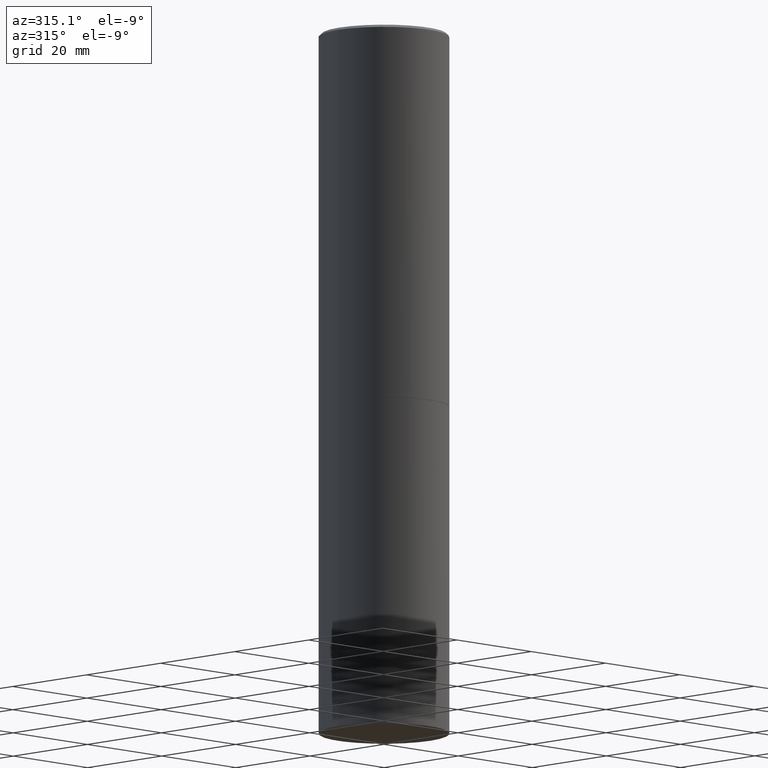
[diagram: clean part render]
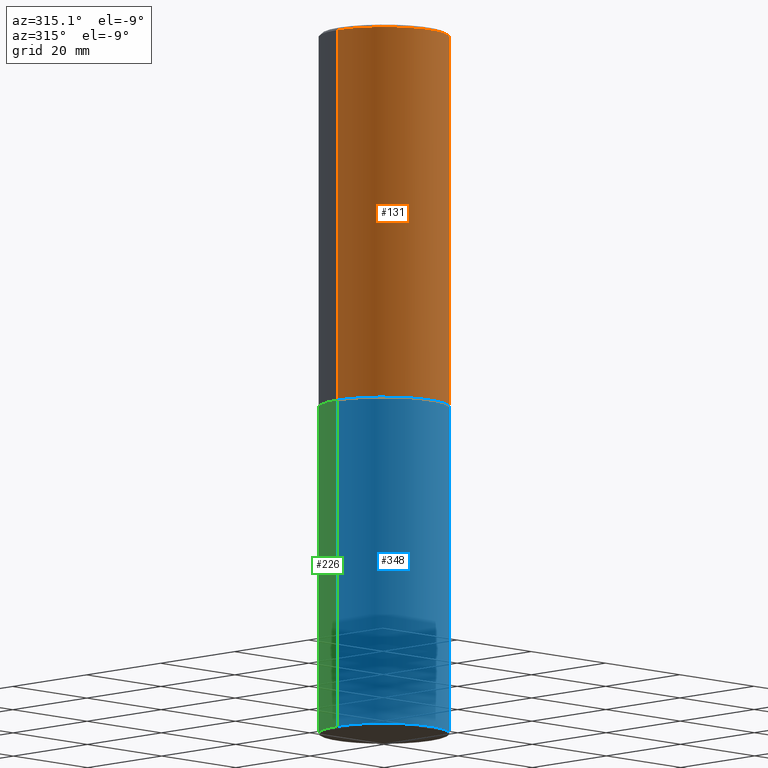
[diagram: same view with three faces highlighted in distinct colors, each labeled with its STEP entity id]
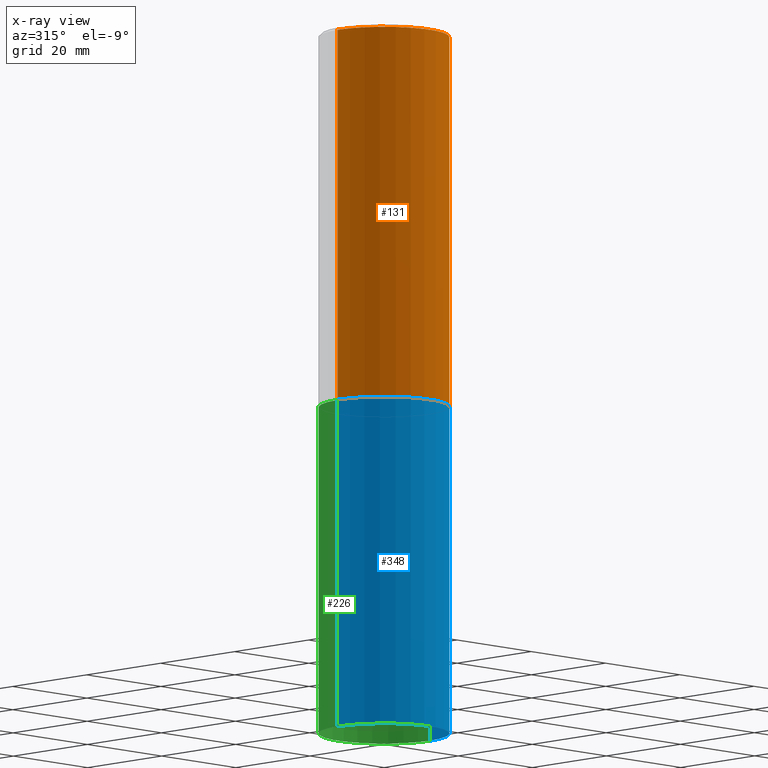
[diagram: x-ray of the same camera — body ghosted, the three highlighted faces saturated]
A machine part, auxiliary view with three faces highlighted in distinct colors.
The next image is the same camera in x-ray (body ghosted, the three faces saturated) — at least one of them is partly hidden behind the body in this view.
Their STEP definitions:

[orange] entity #131 — the highlighted cylindrical surface (partial cylindrical patch) has radius 12.5006 mm, axis along (-0, 0, 1).
#25 = ORIENTED_EDGE ( 'NONE', *, *, #360, .F. ) ;
#39 = ORIENTED_EDGE ( 'NONE', *, *, #61, .F. ) ;
#52 = EDGE_CURVE ( 'NONE', #236, #253, #229, .T. ) ;
#54 = CIRCLE ( 'NONE', #200, 0.4921499999999999764 ) ;
#61 = EDGE_CURVE ( 'NONE', #324, #253, #95, .T. ) ;
#68 = DIRECTION ( 'NONE',  ( -2.445468806185136877E-29, 3.491481338843145188E-15, 1.000000000000000000 ) ) ;
#71 = VERTEX_POINT ( 'NONE', #203 ) ;
#78 = DIRECTION ( 'NONE',  ( -2.445468806185136877E-29, 3.491481338843145188E-15, 1.000000000000000000 ) ) ;
#93 = DIRECTION ( 'NONE',  ( 1.000000000000000000, -6.982962677686265922E-15, 0.000000000000000000 ) ) ;
#95 = CIRCLE ( 'NONE', #268, 0.4921499999999996988 ) ;
#119 = EDGE_CURVE ( 'NONE', #71, #236, #54, .T. ) ;
#122 = CYLINDRICAL_SURFACE ( 'NONE', #234, 0.4921499999999998098 ) ;
#123 = FACE_OUTER_BOUND ( 'NONE', #276, .T. ) ;
#131 = ADVANCED_FACE ( 'NONE', ( #123 ), #122, .T. ) ;
#147 = DIRECTION ( 'NONE',  ( -2.445468806185136597E-29, 3.491481338843145583E-15, 1.000000000000000000 ) ) ;
#153 = CARTESIAN_POINT ( 'NONE',  ( 6.929724956086824062E-29, -9.893810669879824545E-15, -2.833700000000000774 ) ) ;
#163 = CARTESIAN_POINT ( 'NONE',  ( -0.4921499999999996988, 3.366835455046430506E-15, -0.02000000000000009409 ) ) ;
#200 = AXIS2_PLACEMENT_3D ( 'NONE', #153, #269, #272 ) ;
#201 = CARTESIAN_POINT ( 'NONE',  ( 0.4921499999999998098, -3.436665081823294593E-15, 2.399810400207968762E-29 ) ) ;
#203 = CARTESIAN_POINT ( 'NONE',  ( -0.4921499999999999764, -1.484884074285010433E-15, -2.833700000000000774 ) ) ;
#212 = CARTESIAN_POINT ( 'NONE',  ( 0.4921499999999999764, -1.333047575170312032E-14, -2.833700000000000774 ) ) ;
#214 = VECTOR ( 'NONE', #68, 39.37007874015748143 ) ;
#229 = LINE ( 'NONE', #201, #214 ) ;
#231 = CARTESIAN_POINT ( 'NONE',  ( 4.890937612370296805E-31, -6.982962677686323656E-17, -0.02000000000000009409 ) ) ;
#234 = AXIS2_PLACEMENT_3D ( 'NONE', #266, #147, #238 ) ;
#236 = VERTEX_POINT ( 'NONE', #212 ) ;
#238 = DIRECTION ( 'NONE',  ( 1.000000000000000000, -6.982962677686265922E-15, 4.876176775795935793E-29 ) ) ;
#244 = LINE ( 'NONE', #249, #284 ) ;
#249 = CARTESIAN_POINT ( 'NONE',  ( -0.4921499999999998098, 3.496936074043331714E-15, -2.420853904668950949E-29 ) ) ;
#253 = VERTEX_POINT ( 'NONE', #286 ) ;
#266 = CARTESIAN_POINT ( 'NONE',  ( 0.000000000000000000, 0.000000000000000000, 0.000000000000000000 ) ) ;
#268 = AXIS2_PLACEMENT_3D ( 'NONE', #231, #346, #93 ) ;
#269 = DIRECTION ( 'NONE',  ( -2.445468806185136597E-29, 3.491481338843145583E-15, 1.000000000000000000 ) ) ;
#272 = DIRECTION ( 'NONE',  ( 1.000000000000000000, -6.982962677686265922E-15, 0.000000000000000000 ) ) ;
#276 = EDGE_LOOP ( 'NONE', ( #25, #352, #316, #39 ) ) ;
#284 = VECTOR ( 'NONE', #78, 39.37007874015748143 ) ;
#286 = CARTESIAN_POINT ( 'NONE',  ( 0.4921499999999996988, -3.446223716380120377E-15, -0.02000000000000009409 ) ) ;
#316 = ORIENTED_EDGE ( 'NONE', *, *, #52, .T. ) ;
#324 = VERTEX_POINT ( 'NONE', #163 ) ;
#346 = DIRECTION ( 'NONE',  ( -2.445468806185136597E-29, 3.491481338843145583E-15, 1.000000000000000000 ) ) ;
#352 = ORIENTED_EDGE ( 'NONE', *, *, #119, .T. ) ;
#360 = EDGE_CURVE ( 'NONE', #71, #324, #244, .T. ) ;

[blue] entity #348 — the highlighted cylindrical surface (partial cylindrical patch) has radius 12.5006 mm, axis along (-0, 0, 1).
#2 = VECTOR ( 'NONE', #210, 39.37007874015748143 ) ;
#4 = ORIENTED_EDGE ( 'NONE', *, *, #84, .F. ) ;
#9 = CARTESIAN_POINT ( 'NONE',  ( -0.4921499999999999764, -1.073032665954166075E-14, -5.315000000000000391 ) ) ;
#18 = DIRECTION ( 'NONE',  ( -2.445468806185136597E-29, 3.491481338843145583E-15, 1.000000000000000000 ) ) ;
#19 = VERTEX_POINT ( 'NONE', #197 ) ;
#22 = VECTOR ( 'NONE', #207, 39.37007874015748143 ) ;
#36 = VERTEX_POINT ( 'NONE', #87 ) ;
#45 = CIRCLE ( 'NONE', #170, 0.4921499999999999764 ) ;
#46 = DIRECTION ( 'NONE',  ( 1.000000000000000000, -6.982962677686265922E-15, 4.876176775795935793E-29 ) ) ;
#57 = VERTEX_POINT ( 'NONE', #9 ) ;
#73 = EDGE_LOOP ( 'NONE', ( #4, #218, #274, #262 ) ) ;
#80 = DIRECTION ( 'NONE',  ( -2.445468806185136597E-29, 3.491481338843145583E-15, 1.000000000000000000 ) ) ;
#84 = EDGE_CURVE ( 'NONE', #57, #36, #171, .T. ) ;
#87 = CARTESIAN_POINT ( 'NONE',  ( -0.4921499999999999764, -1.073032665954166075E-14, -2.834700000000000220 ) ) ;
#100 = CARTESIAN_POINT ( 'NONE',  ( 6.932170424893007423E-29, -9.897302151218665974E-15, -2.834700000000000220 ) ) ;
#103 = DIRECTION ( 'NONE',  ( -2.445468806185136597E-29, 3.491481338843145583E-15, 1.000000000000000000 ) ) ;
#109 = EDGE_CURVE ( 'NONE', #36, #182, #45, .T. ) ;
#110 = AXIS2_PLACEMENT_3D ( 'NONE', #332, #80, #366 ) ;
#111 = FACE_OUTER_BOUND ( 'NONE', #73, .T. ) ;
#148 = EDGE_CURVE ( 'NONE', #19, #182, #355, .T. ) ;
#155 = CYLINDRICAL_SURFACE ( 'NONE', #273, 0.4921499999999999764 ) ;
#162 = CIRCLE ( 'NONE', #110, 0.4921499999999999764 ) ;
#170 = AXIS2_PLACEMENT_3D ( 'NONE', #100, #18, #329 ) ;
#171 = LINE ( 'NONE', #285, #22 ) ;
#182 = VERTEX_POINT ( 'NONE', #213 ) ;
#183 = CARTESIAN_POINT ( 'NONE',  ( 0.4921499999999999764, -3.436665081823295777E-15, 2.399810400207969603E-29 ) ) ;
#185 = EDGE_CURVE ( 'NONE', #57, #19, #162, .T. ) ;
#197 = CARTESIAN_POINT ( 'NONE',  ( 0.4921499999999999764, -2.199388839777461709E-14, -5.315000000000000391 ) ) ;
#207 = DIRECTION ( 'NONE',  ( -2.445468806185136877E-29, 3.491481338843145188E-15, 1.000000000000000000 ) ) ;
#210 = DIRECTION ( 'NONE',  ( -2.445468806185136877E-29, 3.491481338843145188E-15, 1.000000000000000000 ) ) ;
#213 = CARTESIAN_POINT ( 'NONE',  ( 0.4921499999999999764, -1.333396723304196175E-14, -2.834700000000000220 ) ) ;
#218 = ORIENTED_EDGE ( 'NONE', *, *, #185, .T. ) ;
#241 = CARTESIAN_POINT ( 'NONE',  ( 0.000000000000000000, 0.000000000000000000, 0.000000000000000000 ) ) ;
#262 = ORIENTED_EDGE ( 'NONE', *, *, #109, .F. ) ;
#273 = AXIS2_PLACEMENT_3D ( 'NONE', #241, #103, #46 ) ;
#274 = ORIENTED_EDGE ( 'NONE', *, *, #148, .T. ) ;
#285 = CARTESIAN_POINT ( 'NONE',  ( -0.4921499999999999764, 3.496936074043332897E-15, -2.420853904668951509E-29 ) ) ;
#329 = DIRECTION ( 'NONE',  ( 1.000000000000000000, -6.982962677686265922E-15, 0.000000000000000000 ) ) ;
#332 = CARTESIAN_POINT ( 'NONE',  ( 1.299766670487400218E-28, -1.855722331595131973E-14, -5.315000000000000391 ) ) ;
#348 = ADVANCED_FACE ( 'NONE', ( #111 ), #155, .T. ) ;
#355 = LINE ( 'NONE', #183, #2 ) ;
#366 = DIRECTION ( 'NONE',  ( 1.000000000000000000, -6.982962677686265922E-15, 0.000000000000000000 ) ) ;

[green] entity #226 — the highlighted cylindrical surface (partial cylindrical patch) has radius 12.5006 mm, axis along (-0, 0, 1).
#2 = VECTOR ( 'NONE', #210, 39.37007874015748143 ) ;
#7 = CIRCLE ( 'NONE', #221, 0.4921499999999999764 ) ;
#9 = CARTESIAN_POINT ( 'NONE',  ( -0.4921499999999999764, -1.073032665954166075E-14, -5.315000000000000391 ) ) ;
#17 = EDGE_CURVE ( 'NONE', #19, #57, #228, .T. ) ;
#19 = VERTEX_POINT ( 'NONE', #197 ) ;
#22 = VECTOR ( 'NONE', #207, 39.37007874015748143 ) ;
#23 = DIRECTION ( 'NONE',  ( 1.000000000000000000, -6.982962677686265922E-15, 4.876176775795935793E-29 ) ) ;
#24 = CYLINDRICAL_SURFACE ( 'NONE', #138, 0.4921499999999999764 ) ;
#36 = VERTEX_POINT ( 'NONE', #87 ) ;
#57 = VERTEX_POINT ( 'NONE', #9 ) ;
#81 = EDGE_LOOP ( 'NONE', ( #209, #121, #292, #343 ) ) ;
#82 = DIRECTION ( 'NONE',  ( -2.445468806185136597E-29, 3.491481338843145583E-15, 1.000000000000000000 ) ) ;
#84 = EDGE_CURVE ( 'NONE', #57, #36, #171, .T. ) ;
#85 = DIRECTION ( 'NONE',  ( -2.445468806185136597E-29, 3.491481338843145583E-15, 1.000000000000000000 ) ) ;
#87 = CARTESIAN_POINT ( 'NONE',  ( -0.4921499999999999764, -1.073032665954166075E-14, -2.834700000000000220 ) ) ;
#90 = CARTESIAN_POINT ( 'NONE',  ( 1.299766670487400218E-28, -1.855722331595131973E-14, -5.315000000000000391 ) ) ;
#121 = ORIENTED_EDGE ( 'NONE', *, *, #84, .T. ) ;
#135 = FACE_OUTER_BOUND ( 'NONE', #81, .T. ) ;
#138 = AXIS2_PLACEMENT_3D ( 'NONE', #254, #82, #23 ) ;
#148 = EDGE_CURVE ( 'NONE', #19, #182, #355, .T. ) ;
#156 = DIRECTION ( 'NONE',  ( 1.000000000000000000, -6.982962677686265922E-15, 0.000000000000000000 ) ) ;
#171 = LINE ( 'NONE', #285, #22 ) ;
#182 = VERTEX_POINT ( 'NONE', #213 ) ;
#183 = CARTESIAN_POINT ( 'NONE',  ( 0.4921499999999999764, -3.436665081823295777E-15, 2.399810400207969603E-29 ) ) ;
#197 = CARTESIAN_POINT ( 'NONE',  ( 0.4921499999999999764, -2.199388839777461709E-14, -5.315000000000000391 ) ) ;
#198 = EDGE_CURVE ( 'NONE', #182, #36, #7, .T. ) ;
#207 = DIRECTION ( 'NONE',  ( -2.445468806185136877E-29, 3.491481338843145188E-15, 1.000000000000000000 ) ) ;
#209 = ORIENTED_EDGE ( 'NONE', *, *, #17, .T. ) ;
#210 = DIRECTION ( 'NONE',  ( -2.445468806185136877E-29, 3.491481338843145188E-15, 1.000000000000000000 ) ) ;
#213 = CARTESIAN_POINT ( 'NONE',  ( 0.4921499999999999764, -1.333396723304196175E-14, -2.834700000000000220 ) ) ;
#221 = AXIS2_PLACEMENT_3D ( 'NONE', #303, #85, #156 ) ;
#224 = DIRECTION ( 'NONE',  ( -2.445468806185136597E-29, 3.491481338843145583E-15, 1.000000000000000000 ) ) ;
#226 = ADVANCED_FACE ( 'NONE', ( #135 ), #24, .T. ) ;
#228 = CIRCLE ( 'NONE', #362, 0.4921499999999999764 ) ;
#254 = CARTESIAN_POINT ( 'NONE',  ( 0.000000000000000000, 0.000000000000000000, 0.000000000000000000 ) ) ;
#282 = DIRECTION ( 'NONE',  ( 1.000000000000000000, -6.982962677686265922E-15, 0.000000000000000000 ) ) ;
#285 = CARTESIAN_POINT ( 'NONE',  ( -0.4921499999999999764, 3.496936074043332897E-15, -2.420853904668951509E-29 ) ) ;
#292 = ORIENTED_EDGE ( 'NONE', *, *, #198, .F. ) ;
#303 = CARTESIAN_POINT ( 'NONE',  ( 6.932170424893007423E-29, -9.897302151218665974E-15, -2.834700000000000220 ) ) ;
#343 = ORIENTED_EDGE ( 'NONE', *, *, #148, .F. ) ;
#355 = LINE ( 'NONE', #183, #2 ) ;
#362 = AXIS2_PLACEMENT_3D ( 'NONE', #90, #224, #282 ) ;